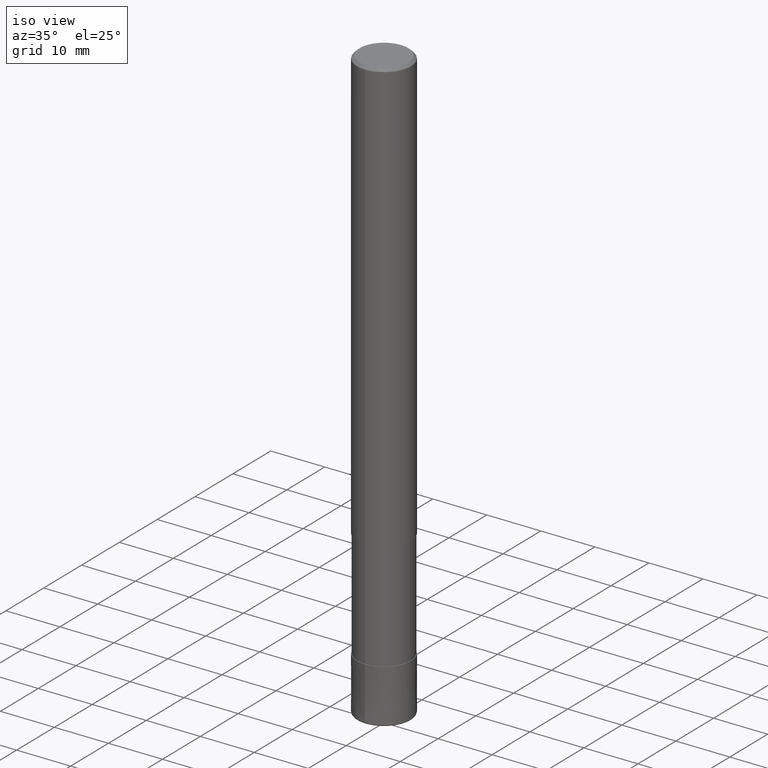
[diagram: clean part render]
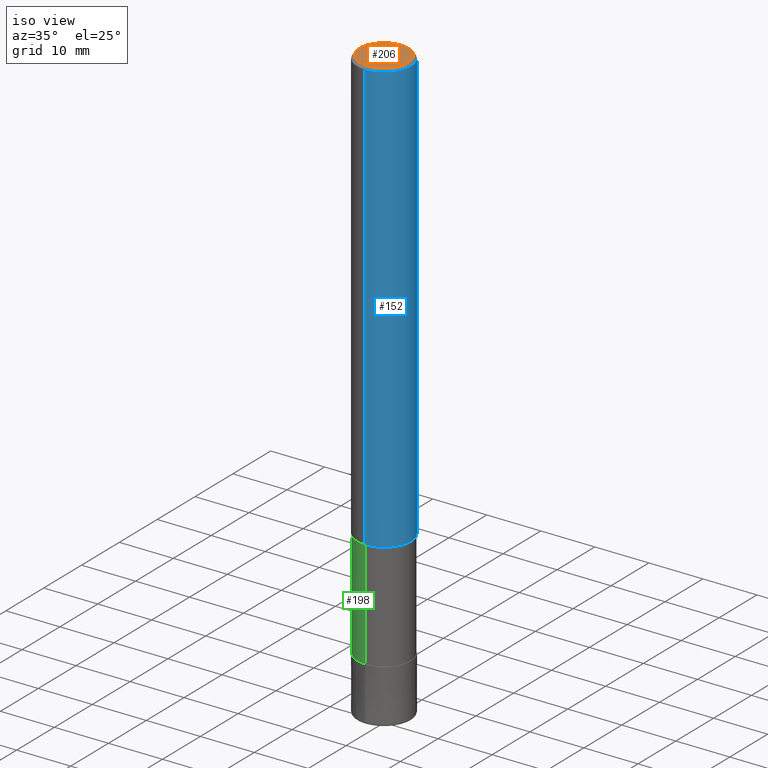
[diagram: same view with three faces highlighted in distinct colors, each labeled with its STEP entity id]
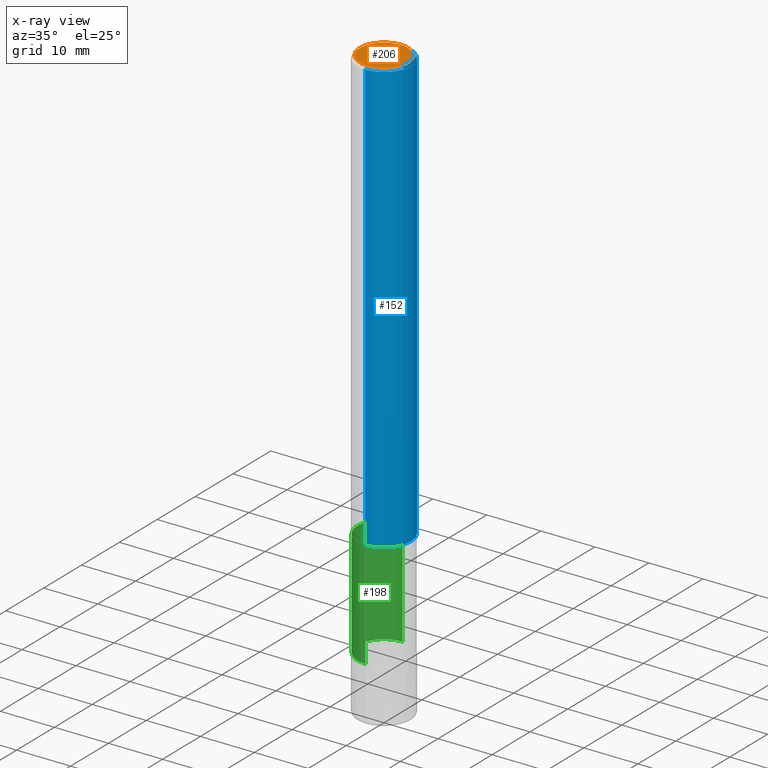
[diagram: x-ray of the same camera — body ghosted, the three highlighted faces saturated]
A machine part, iso view with three faces highlighted in distinct colors.
The next image is the same camera in x-ray (body ghosted, the three faces saturated) — at least one of them is partly hidden behind the body in this view.
Their STEP definitions:

[orange] entity #206 — the highlighted planar face has unit normal (-0, 0, 1).
#94=VERTEX_POINT('',#231);
#132=EDGE_CURVE('',#94,#196,#273,.T.);
#186=EDGE_CURVE('',#196,#94,#334,.T.);
#196=VERTEX_POINT('',#347);
#206=ADVANCED_FACE('',(#358),#359,.T.);
#231=CARTESIAN_POINT('',(0.0,4.5,0.0));
#273=CIRCLE('',#428,4.5);
#334=CIRCLE('',#508,4.5);
#347=CARTESIAN_POINT('',(5.5107285922007E-016,-4.5,0.0));
#358=FACE_OUTER_BOUND('',#534,.T.);
#359=PLANE('',#535);
#428=AXIS2_PLACEMENT_3D('',#587,#588,#589);
#508=AXIS2_PLACEMENT_3D('',#664,#665,#666);
#534=EDGE_LOOP('',(#708,#709));
#535=AXIS2_PLACEMENT_3D('',#710,#711,#712);
#587=CARTESIAN_POINT('',(0.0,0.0,0.0));
#588=DIRECTION('',(0.0,0.0,-1.0));
#589=DIRECTION('',(0.0,1.0,0.0));
#664=CARTESIAN_POINT('',(0.0,0.0,0.0));
#665=DIRECTION('',(0.0,0.0,-1.0));
#666=DIRECTION('',(0.0,1.0,0.0));
#708=ORIENTED_EDGE('',*,*,#132,.F.);
#709=ORIENTED_EDGE('',*,*,#186,.F.);
#710=CARTESIAN_POINT('',(0.0,2.25,0.0));
#711=DIRECTION('',(-0.0,0.0,1.0));
#712=DIRECTION('',(0.0,-1.0,0.0));

[blue] entity #152 — the highlighted cylindrical surface (edge-blend (fillet) strip) has radius 5 mm, axis along (-0, -0, 1).
#104=VERTEX_POINT('',#241);
#120=EDGE_CURVE('',#154,#126,#260,.T.);
#126=VERTEX_POINT('',#266);
#138=EDGE_CURVE('',#104,#126,#279,.T.);
#152=ADVANCED_FACE('',(#297),#298,.T.);
#154=VERTEX_POINT('',#300);
#160=EDGE_CURVE('',#154,#182,#306,.T.);
#168=EDGE_CURVE('',#182,#104,#314,.T.);
#182=VERTEX_POINT('',#330);
#241=CARTESIAN_POINT('',(6.12303176911189E-016,-5.0,-80.0));
#260=CIRCLE('',#413,5.0);
#266=CARTESIAN_POINT('',(6.12303176911189E-016,-5.0,-0.5));
#279=LINE('',#437,#438);
#297=FACE_OUTER_BOUND('',#457,.T.);
#298=CYLINDRICAL_SURFACE('',#458,5.0);
#300=CARTESIAN_POINT('',(0.0,5.0,-0.5));
#306=LINE('',#468,#469);
#314=CIRCLE('',#481,5.0);
#330=CARTESIAN_POINT('',(0.0,5.0,-80.0));
#413=AXIS2_PLACEMENT_3D('',#573,#574,#575);
#437=CARTESIAN_POINT('',(6.12303176911189E-016,-5.0,-40.25));
#438=VECTOR('',#596,1.0);
#457=EDGE_LOOP('',(#631,#632,#633,#634));
#458=AXIS2_PLACEMENT_3D('',#635,#636,#637);
#468=CARTESIAN_POINT('',(-6.12303176911189E-016,5.0,-40.25));
#469=VECTOR('',#641,1.0);
#481=AXIS2_PLACEMENT_3D('',#646,#647,#648);
#573=CARTESIAN_POINT('',(0.0,0.0,-0.5));
#574=DIRECTION('',(0.0,0.0,-1.0));
#575=DIRECTION('',(0.0,1.0,0.0));
#596=DIRECTION('',(-0.0,-0.0,1.0));
#631=ORIENTED_EDGE('',*,*,#160,.F.);
#632=ORIENTED_EDGE('',*,*,#120,.T.);
#633=ORIENTED_EDGE('',*,*,#138,.F.);
#634=ORIENTED_EDGE('',*,*,#168,.F.);
#635=CARTESIAN_POINT('',(0.0,0.0,-40.25));
#636=DIRECTION('',(-0.0,-0.0,1.0));
#637=DIRECTION('',(0.0,1.0,0.0));
#641=DIRECTION('',(0.0,0.0,-1.0));
#646=CARTESIAN_POINT('',(0.0,0.0,-80.0));
#647=DIRECTION('',(0.0,0.0,-1.0));
#648=DIRECTION('',(0.0,1.0,0.0));

[green] entity #198 — the highlighted cylindrical surface (edge-blend (fillet) strip) has radius 4.91 mm, axis along (-0, -0, 1).
#96=EDGE_CURVE('',#114,#112,#233,.T.);
#112=VERTEX_POINT('',#251);
#114=VERTEX_POINT('',#253);
#130=VERTEX_POINT('',#271);
#166=EDGE_CURVE('',#112,#176,#312,.T.);
#172=EDGE_CURVE('',#130,#114,#318,.T.);
#176=VERTEX_POINT('',#324);
#192=EDGE_CURVE('',#130,#176,#342,.T.);
#198=ADVANCED_FACE('',(#349),#350,.T.);
#233=CIRCLE('',#380,4.90995);
#251=CARTESIAN_POINT('',(0.0,4.90995,-80.0));
#253=CARTESIAN_POINT('',(6.01275596695018E-016,-4.90995,-80.0));
#271=CARTESIAN_POINT('',(6.01275596695018E-016,-4.90995,-100.0));
#312=LINE('',#477,#478);
#318=LINE('',#488,#489);
#324=CARTESIAN_POINT('',(0.0,4.90995,-100.0));
#342=CIRCLE('',#517,4.90995);
#349=FACE_OUTER_BOUND('',#524,.T.);
#350=CYLINDRICAL_SURFACE('',#525,4.90995);
#380=AXIS2_PLACEMENT_3D('',#543,#544,#545);
#477=CARTESIAN_POINT('',(-6.01275596695018E-016,4.90995,-90.0));
#478=VECTOR('',#645,1.0);
#488=CARTESIAN_POINT('',(6.01275596695018E-016,-4.90995,-90.0));
#489=VECTOR('',#650,1.0);
#517=AXIS2_PLACEMENT_3D('',#681,#682,#683);
#524=EDGE_LOOP('',(#693,#694,#695,#696));
#525=AXIS2_PLACEMENT_3D('',#697,#698,#699);
#543=CARTESIAN_POINT('',(0.0,0.0,-80.0));
#544=DIRECTION('',(0.0,0.0,-1.0));
#545=DIRECTION('',(0.0,1.0,0.0));
#645=DIRECTION('',(0.0,0.0,-1.0));
#650=DIRECTION('',(-0.0,-0.0,1.0));
#681=CARTESIAN_POINT('',(0.0,0.0,-100.0));
#682=DIRECTION('',(0.0,0.0,-1.0));
#683=DIRECTION('',(0.0,1.0,0.0));
#693=ORIENTED_EDGE('',*,*,#166,.T.);
#694=ORIENTED_EDGE('',*,*,#192,.F.);
#695=ORIENTED_EDGE('',*,*,#172,.T.);
#696=ORIENTED_EDGE('',*,*,#96,.T.);
#697=CARTESIAN_POINT('',(0.0,0.0,-90.0));
#698=DIRECTION('',(-0.0,-0.0,1.0));
#699=DIRECTION('',(0.0,1.0,0.0));